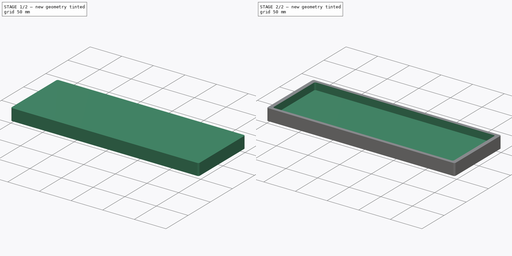
[diagram: build sequence overview — one tinted view per stage of 2, left to right]
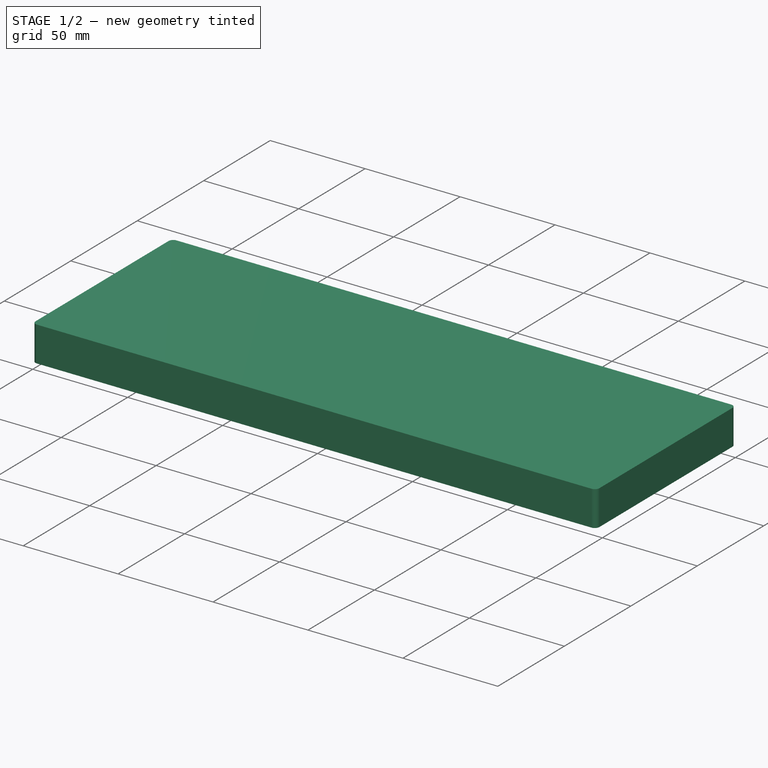
[diagram: stage 1 of 2 — iso view after this stage's code; geometry added in this stage tinted green]
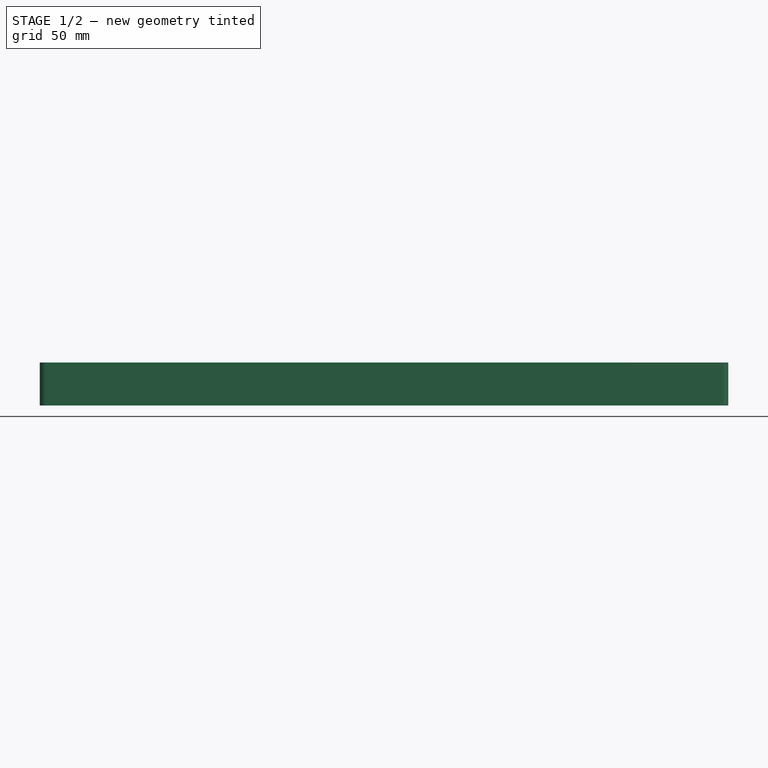
[diagram: stage 1 of 2 — front view after this stage's code; geometry added in this stage tinted green]
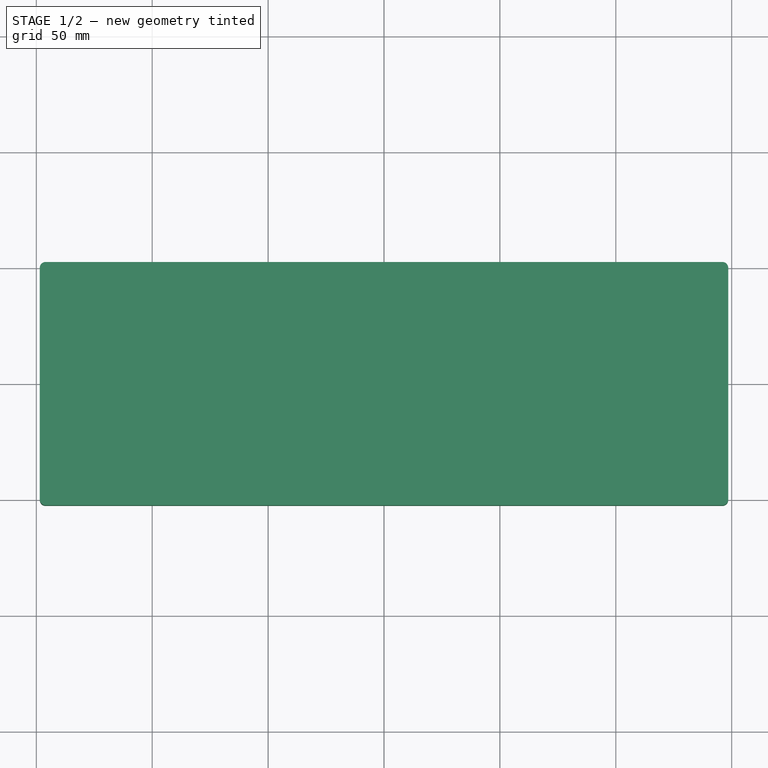
[diagram: stage 1 of 2 — top view after this stage's code; geometry added in this stage tinted green]
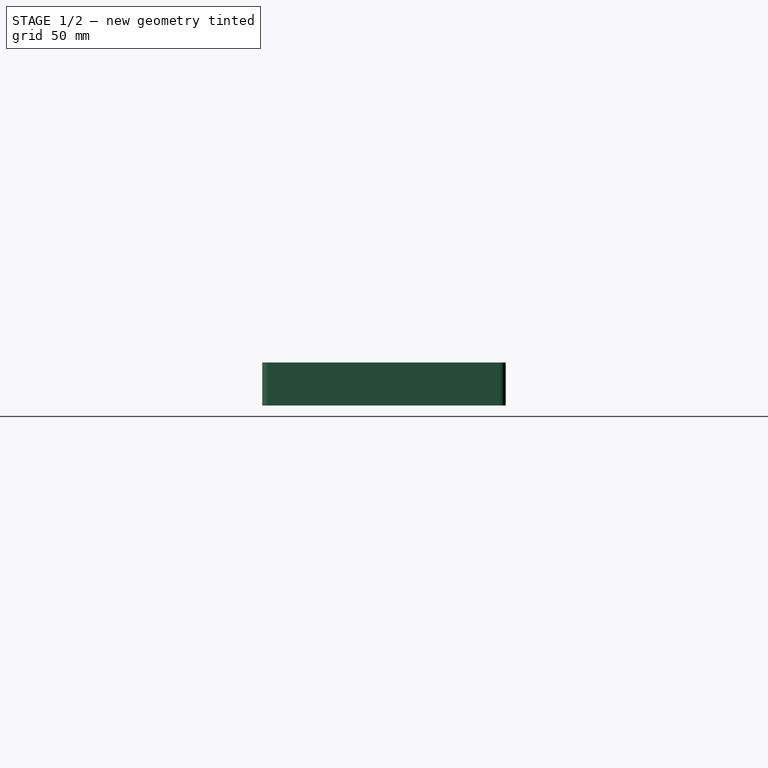
[diagram: stage 1 of 2 — right view after this stage's code; geometry added in this stage tinted green]
FCSTD DOCUMENT  (FreeCAD 0.21R33668 +7 (Git))
Label: TR-60
License: All rights reserved
LicenseURL: http://en.wikipedia.org/wiki/All_rights_reserved
objects: Sketcher::SketchObject×3, PartDesign::Pad×1, PartDesign::Pocket×1, PartDesign::Body×1
note: 8 computed .brp shape members not serialized (recipe doc carries the construction recipe); baked Part::Feature solids carry a one-line shape summary decoded from their .brp

FEATURE [Sketcher::SketchObject] Sketch
  FullyConstrained = true
  MapMode = 5
  Support = -> [XY_Plane]
  sketch-geometry (13):
    g0: LineSegment StartX=148.5 StartY=-50 StartZ=0 EndX=148.5 EndY=50 EndZ=0
    g1: LineSegment StartX=146 StartY=52.5 StartZ=0 EndX=-146 EndY=52.5 EndZ=0
    g2: LineSegment StartX=-148.5 StartY=50 StartZ=0 EndX=-148.5 EndY=-50 EndZ=0
    g3: LineSegment StartX=-146 StartY=-52.5 StartZ=0 EndX=146 EndY=-52.5 EndZ=0
    g4: GeomPoint X=0 Y=0 Z=0
    g5: ArcOfCircle CenterX=-146 CenterY=50 CenterZ=0 NormalX=0 NormalY=0 NormalZ=1 AngleXU=0 Radius=2.5 StartAngle=1.5708 EndAngle=3.14159
    g6: GeomPoint X=-148.5 Y=52.5 Z=0
    g7: ArcOfCircle CenterX=146 CenterY=50 CenterZ=0 NormalX=0 NormalY=0 NormalZ=1 AngleXU=0 Radius=2.5 StartAngle=4e-16 EndAngle=1.5708
    g8: GeomPoint X=148.5 Y=52.5 Z=0
    g9: ArcOfCircle CenterX=146 CenterY=-50 CenterZ=0 NormalX=0 NormalY=0 NormalZ=1 AngleXU=0 Radius=2.5 StartAngle=4.71239 EndAngle=6.28319
    g10: GeomPoint X=148.5 Y=-52.5 Z=0
    g11: ArcOfCircle CenterX=-146 CenterY=-50 CenterZ=0 NormalX=0 NormalY=0 NormalZ=1 AngleXU=0 Radius=2.5 StartAngle=3.14159 EndAngle=4.71239
    g12: GeomPoint X=-148.5 Y=-52.5 Z=0
  constraints (28):
    c: Horizontal(g1)
    c: Horizontal(g3)
    c: Vertical(g0)
    c: Vertical(g2)
    c: Symmetric(g6,g10,g4)
    c: Coincident(g4,g-1)
    c: DistanceX(g6,g8) = 297
    c: DistanceY(g10,g8) = 105
    c: PointOnObject(g6,g1)
    c: PointOnObject(g6,g2)
    c: Tangent(g1,g5) = -1.5708
    c: Tangent(g2,g5) = -1.5708
    c: PointOnObject(g8,g1)
    c: PointOnObject(g8,g0)
    c: Tangent(g1,g7) = -1.5708
    c: Tangent(g0,g7) = -1.5708
    c: PointOnObject(g10,g0)
    c: PointOnObject(g10,g3)
    c: Tangent(g0,g9) = -1.5708
    c: Tangent(g3,g9) = -1.5708
    c: PointOnObject(g12,g2)
    c: PointOnObject(g12,g3)
    c: Tangent(g2,g11) = -1.5708
    c: Tangent(g3,g11) = -1.5708
    c: Radius(g5) = 2.5
    c: Equal(g5,g7)
    c: Equal(g5,g11)
    c: Equal(g11,g9)
FEATURE [PartDesign::Pad] Pad
  Direction = (0,0,1)
  Length = 18.5
  Length2 = 10
  Profile = -> Sketch
  ReferenceAxis = -> Sketch [N_Axis]
  Type = 0
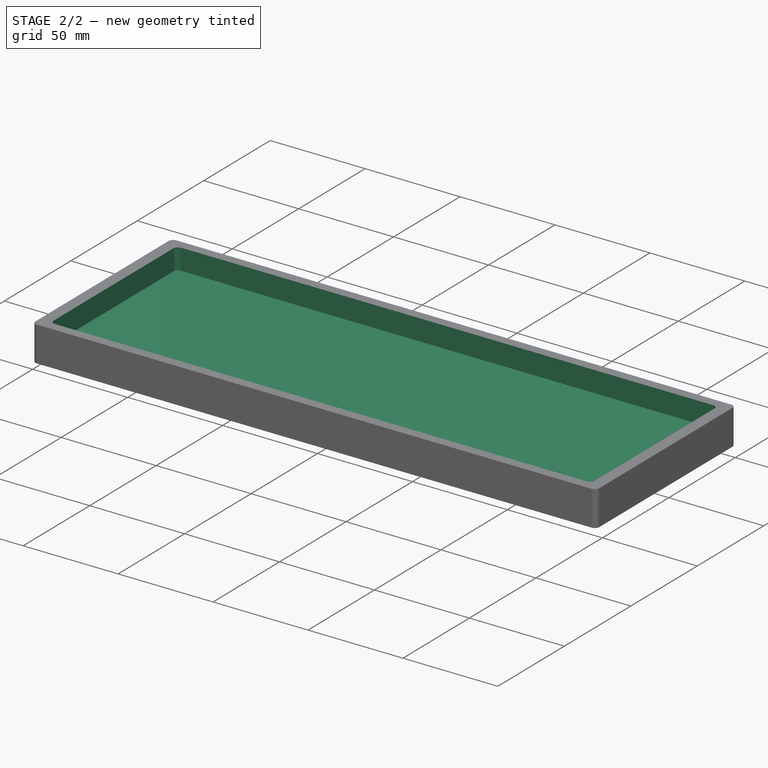
[diagram: stage 2 of 2 — iso view after this stage's code; geometry added in this stage tinted green]
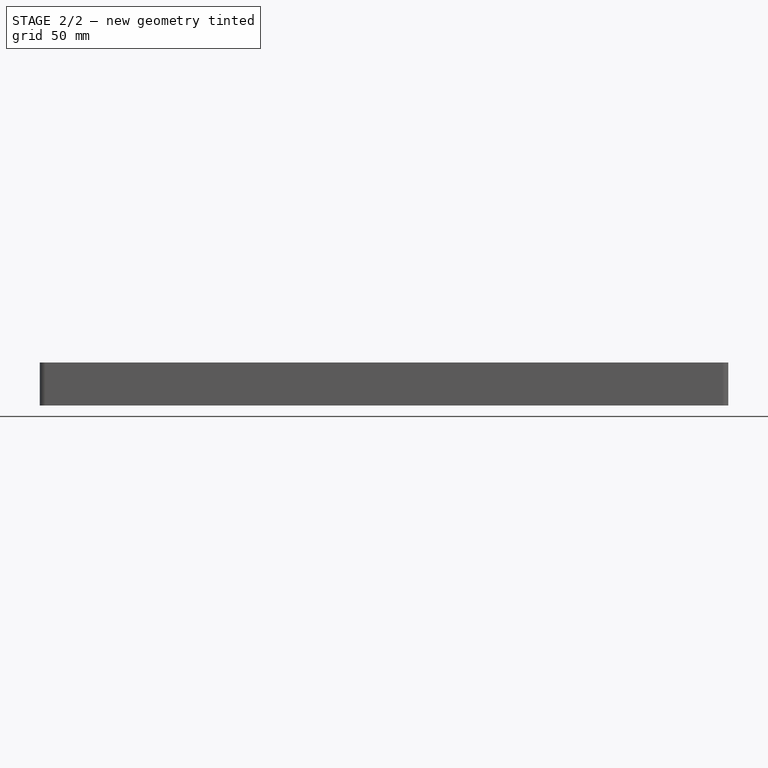
[diagram: stage 2 of 2 — front view after this stage's code; geometry added in this stage tinted green]
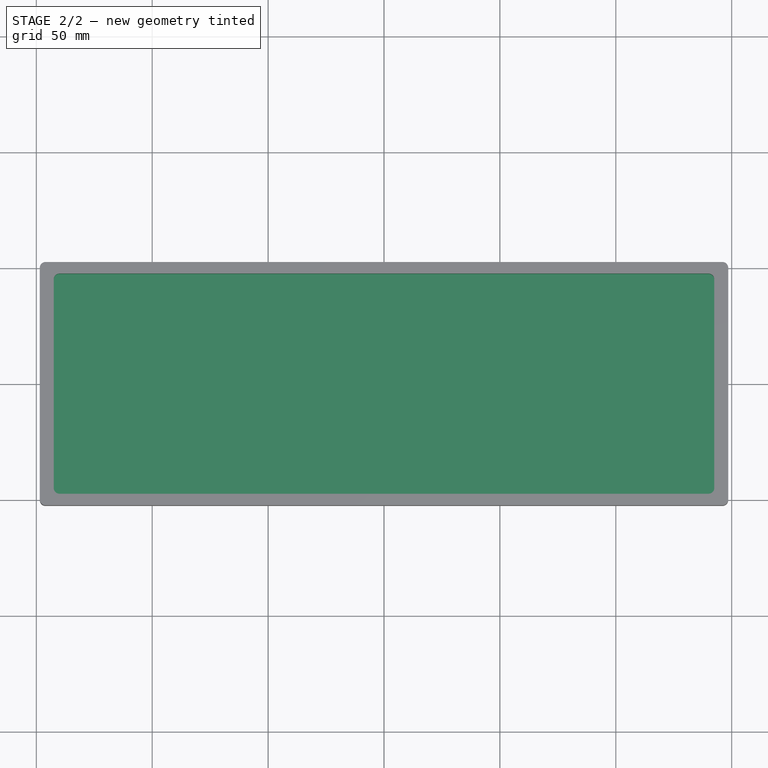
[diagram: stage 2 of 2 — top view after this stage's code; geometry added in this stage tinted green]
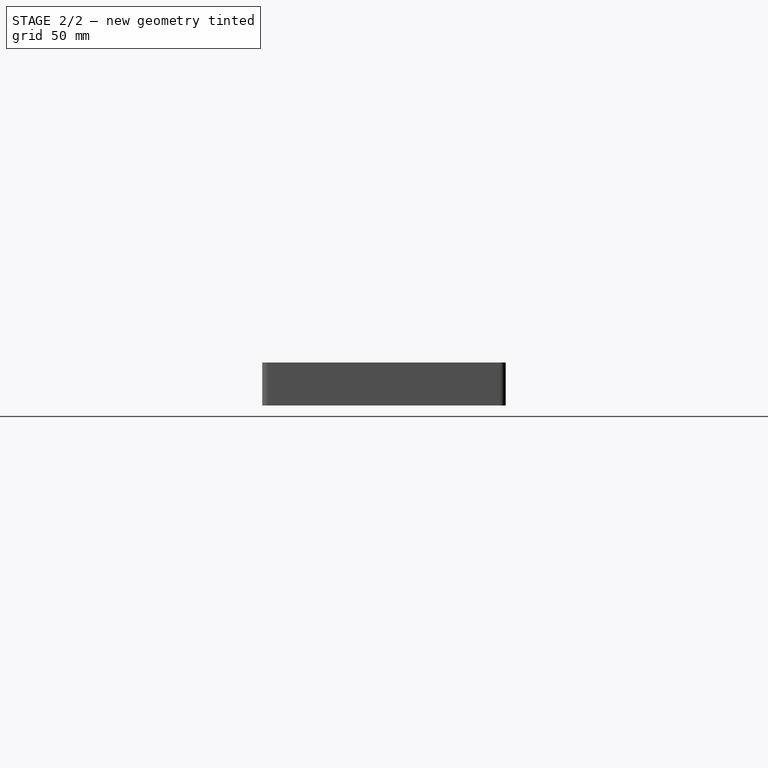
[diagram: stage 2 of 2 — right view after this stage's code; geometry added in this stage tinted green]
FEATURE [Sketcher::SketchObject] Sketch001
  FullyConstrained = true
  MapMode = 5
  Placement = pos=(0,0,18.5) rot=(0,0,1;0rad)
  Support = -> [Pad]
  sketch-geometry (13):
    g0: LineSegment StartX=142.5 StartY=-45 StartZ=0 EndX=142.5 EndY=45 EndZ=0
    g1: LineSegment StartX=140 StartY=47.5 StartZ=0 EndX=-140 EndY=47.5 EndZ=0
    g2: LineSegment StartX=-142.5 StartY=45 StartZ=0 EndX=-142.5 EndY=-45 EndZ=0
    g3: LineSegment StartX=-140 StartY=-47.5 StartZ=0 EndX=140 EndY=-47.5 EndZ=0
    g4: GeomPoint X=0 Y=0 Z=0
    g5: ArcOfCircle CenterX=-140 CenterY=45 CenterZ=0 NormalX=0 NormalY=0 NormalZ=1 AngleXU=0 Radius=2.5 StartAngle=1.5708 EndAngle=3.14159
    g6: GeomPoint X=-142.5 Y=47.5 Z=0
    g7: ArcOfCircle CenterX=140 CenterY=45 CenterZ=0 NormalX=0 NormalY=0 NormalZ=1 AngleXU=0 Radius=2.5 StartAngle=0 EndAngle=1.5708
    g8: GeomPoint X=142.5 Y=47.5 Z=0
    g9: ArcOfCircle CenterX=140 CenterY=-45 CenterZ=0 NormalX=0 NormalY=0 NormalZ=1 AngleXU=0 Radius=2.5 StartAngle=4.71239 EndAngle=6.28319
    g10: GeomPoint X=142.5 Y=-47.5 Z=0
    g11: ArcOfCircle CenterX=-140 CenterY=-45 CenterZ=0 NormalX=0 NormalY=0 NormalZ=1 AngleXU=0 Radius=2.5 StartAngle=3.14159 EndAngle=4.71239
    g12: GeomPoint X=-142.5 Y=-47.5 Z=0
  constraints (28):
    c: Horizontal(g1)
    c: Horizontal(g3)
    c: Vertical(g0)
    c: Vertical(g2)
    c: Symmetric(g6,g10,g4)
    c: Coincident(g4,g-1)
    c: DistanceX(g6,g8) = 285
    c: DistanceY(g10,g8) = 95
    c: PointOnObject(g6,g2)
    c: PointOnObject(g6,g1)
    c: Tangent(g2,g5) = -1.5708
    c: Tangent(g1,g5) = -1.5708
    c: Radius(g5) = 2.5
    c: PointOnObject(g8,g1)
    c: PointOnObject(g8,g0)
    c: Tangent(g1,g7) = -1.5708
    c: Tangent(g0,g7) = -1.5708
    c: PointOnObject(g10,g0)
    c: PointOnObject(g10,g3)
    c: Tangent(g0,g9) = -1.5708
    c: Tangent(g3,g9) = -1.5708
    c: PointOnObject(g12,g2)
    c: PointOnObject(g12,g3)
    c: Tangent(g2,g11) = -1.5708
    c: Tangent(g3,g11) = -1.5708
    c: Equal(g5,g7)
    c: Equal(g7,g9)
    c: Equal(g9,g11)
FEATURE [PartDesign::Pocket] Pocket
  BaseFeature = -> Pad
  Direction = (0,0,-1)
  Length = 11
  Length2 = 5
  Profile = -> Sketch001
  ReferenceAxis = -> Sketch001 [N_Axis]
  Type = 0
FEATURE [Sketcher::SketchObject] Sketch002
  ExternalGeometry = -> [Pocket]
  FullyConstrained = false
  MapMode = 5
  Placement = pos=(0,0,7.5) rot=(0,0,1;0rad)
  Support = -> [Pocket]
  sketch-geometry (13):
    g0: LineSegment StartX=-22.3233 StartY=47.5 StartZ=0 EndX=-22.3233 EndY=34.1275 EndZ=0
    g1: LineSegment StartX=-22.3233 StartY=34.1275 StartZ=0 EndX=-111.296 EndY=34.1275 EndZ=0
    g2: LineSegment StartX=-111.296 StartY=34.1275 StartZ=0 EndX=-111.296 EndY=-26.7804 EndZ=0
    g3: LineSegment StartX=-111.296 StartY=-26.7804 StartZ=0 EndX=-46.8555 EndY=-26.7804 EndZ=0
    g4: LineSegment StartX=-46.8555 StartY=-26.7804 StartZ=0 EndX=-46.8555 EndY=-40.5339 EndZ=0
    g5: LineSegment StartX=-46.8555 StartY=-40.5339 StartZ=0 EndX=24.9417 EndY=-40.5339 EndZ=0
    g6: LineSegment StartX=24.9417 StartY=-40.5339 StartZ=0 EndX=24.9417 EndY=9.51083 EndZ=0
    g7: LineSegment StartX=24.9417 StartY=9.51083 StartZ=0 EndX=-48.0722 EndY=9.51083 EndZ=0
    g8: LineSegment StartX=-48.0722 StartY=9.51083 StartZ=0 EndX=-48.0722 EndY=-10.6681 EndZ=0
    g9: LineSegment StartX=-48.0722 StartY=-10.6681 StartZ=0 EndX=-91.3568 EndY=-10.6681 EndZ=0
    g10: LineSegment StartX=-91.3568 StartY=-10.6681 StartZ=0 EndX=-91.3568 EndY=19.5035 EndZ=0
    g11: LineSegment StartX=-91.3568 StartY=19.5035 StartZ=0 EndX=-3.61309 EndY=19.5035 EndZ=0
    g12: LineSegment StartX=-3.61309 StartY=19.5035 StartZ=0 EndX=-3.61309 EndY=47.4965 EndZ=0
  constraints (26):
    c: PointOnObject(g0,g-3)
    c: Vertical(g0)
    c: Coincident(g0,g1)
    c: Horizontal(g1)
    c: Coincident(g1,g2)
    c: Vertical(g2)
    c: Coincident(g2,g3)
    c: Horizontal(g3)
    c: Coincident(g3,g4)
    c: Vertical(g4)
    c: Coincident(g4,g5)
    c: Horizontal(g5)
    c: Coincident(g5,g6)
    c: Vertical(g6)
    c: Coincident(g6,g7)
    c: Horizontal(g7)
    c: Coincident(g7,g8)
    c: Vertical(g8)
    c: Coincident(g8,g9)
    c: Horizontal(g9)
    c: Coincident(g9,g10)
    c: Vertical(g10)
    c: Coincident(g10,g11)
    c: Horizontal(g11)
    c: Coincident(g11,g12)
    c: Vertical(g12)
FEATURE [PartDesign::Body] Body
  Group = -> [Sketch,Pad,Sketch001,Pocket,Sketch002]
  Origin = -> Origin
  Tip = -> Pocket
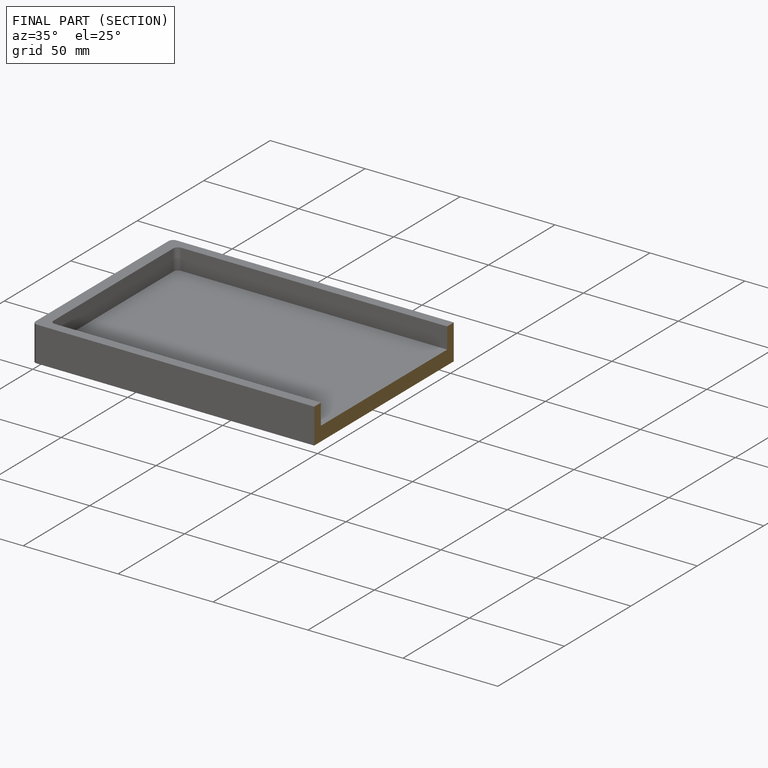
[diagram: finished part — half-section view (interior)]
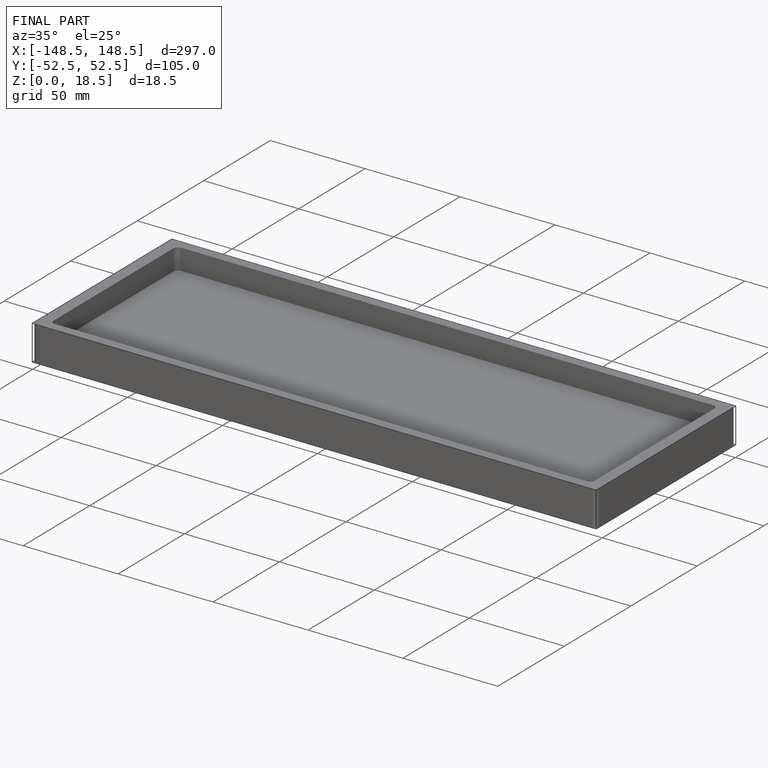
[diagram: finished part — iso view with bounding-box wireframe]
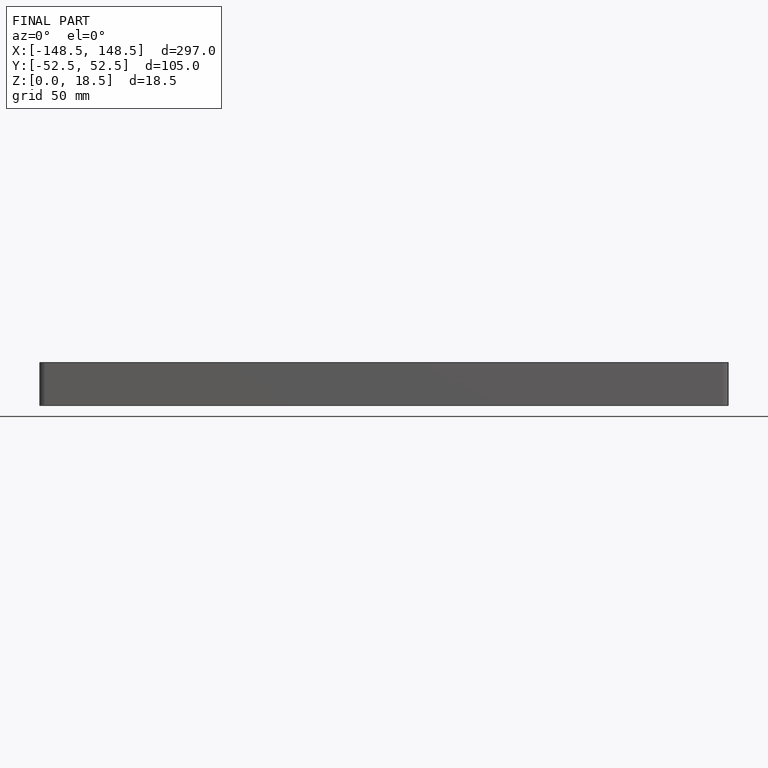
[diagram: finished part — front view with bounding-box wireframe]
